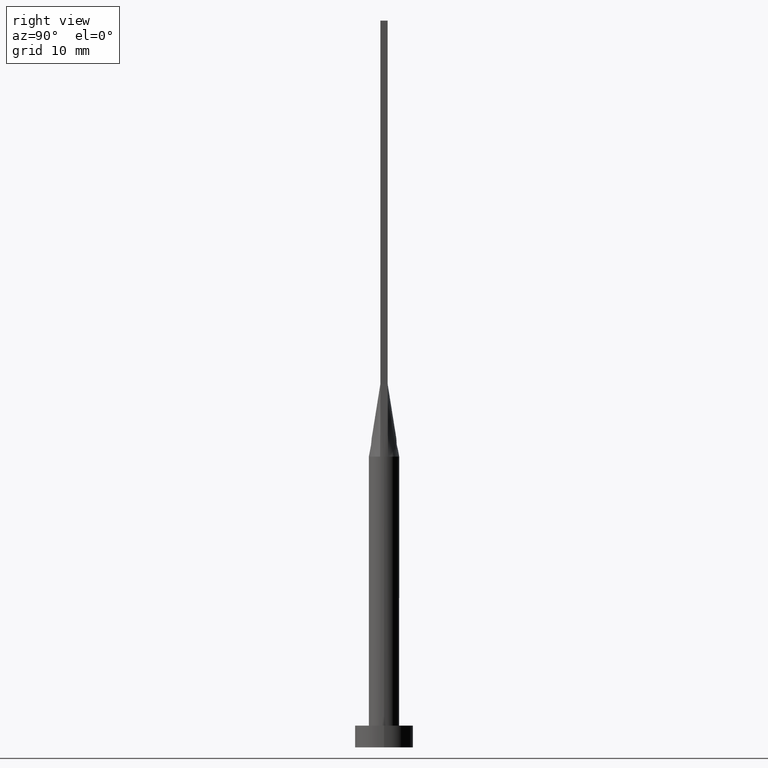
[diagram: clean part render]
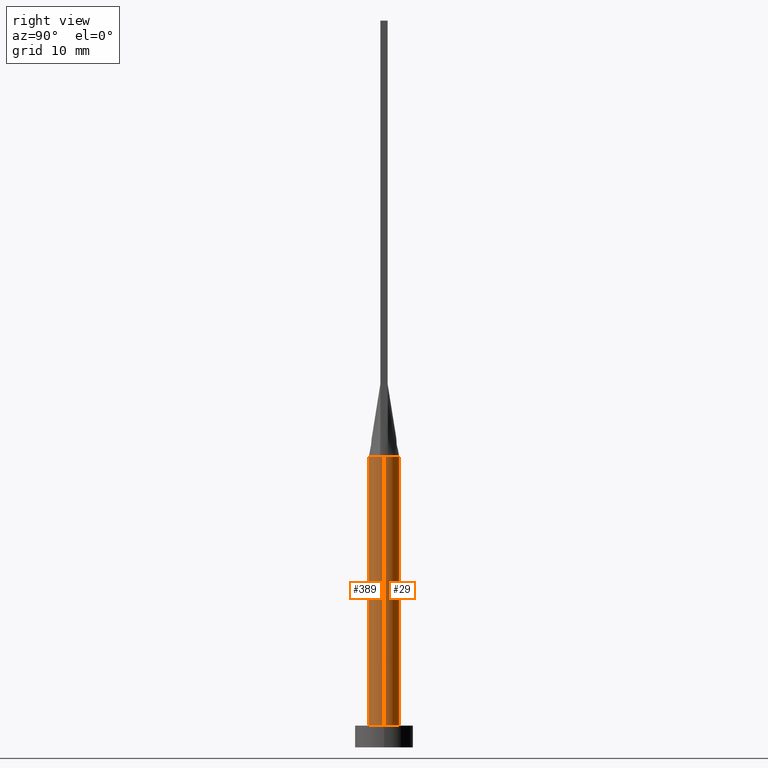
[diagram: same view with one multi-face feature highlighted, each face labeled with its STEP entity id]
A machine part, right view. The highlighted faces form ONE feature: a constant-radius fillet chain: 2 tangent blend faces with common blend radius 2.1 mm. The faces share edges in the B-rep.
Their STEP definitions:
[1] entity #389 (Cylinder):
#3 = VECTOR ( 'NONE', #355, 1000.000000000000000 ) ;
#7 = VERTEX_POINT ( 'NONE', #194 ) ;
#40 = VECTOR ( 'NONE', #156, 1000.000000000000000 ) ;
#46 = EDGE_CURVE ( 'NONE', #7, #149, #467, .T. ) ;
#47 = CIRCLE ( 'NONE', #217, 2.100000000000000089 ) ;
#50 = EDGE_CURVE ( 'NONE', #114, #7, #119, .T. ) ;
#52 = DIRECTION ( 'NONE',  ( 1.000000000000000000, 0.000000000000000000, 0.000000000000000000 ) ) ;
#64 = CARTESIAN_POINT ( 'NONE',  ( 2.100000000000000089, 2.571758278209441957E-16, 40.00000000000000000 ) ) ;
#66 = DIRECTION ( 'NONE',  ( -1.000000000000000000, 0.000000000000000000, 0.000000000000000000 ) ) ;
#86 = VERTEX_POINT ( 'NONE', #210 ) ;
#91 = LINE ( 'NONE', #394, #3 ) ;
#95 = ORIENTED_EDGE ( 'NONE', *, *, #50, .F. ) ;
#97 = CARTESIAN_POINT ( 'NONE',  ( 0.000000000000000000, 0.000000000000000000, 40.00000000000000000 ) ) ;
#114 = VERTEX_POINT ( 'NONE', #292 ) ;
#119 = CIRCLE ( 'NONE', #495, 2.100000000000000089 ) ;
#120 = AXIS2_PLACEMENT_3D ( 'NONE', #97, #375, #66 ) ;
#125 = ORIENTED_EDGE ( 'NONE', *, *, #327, .T. ) ;
#131 = EDGE_CURVE ( 'NONE', #553, #567, #91, .T. ) ;
#139 = AXIS2_PLACEMENT_3D ( 'NONE', #498, #279, #448 ) ;
#146 = CARTESIAN_POINT ( 'NONE',  ( 0.000000000000000000, 0.000000000000000000, 3.000000000000000000 ) ) ;
#149 = VERTEX_POINT ( 'NONE', #276 ) ;
#156 = DIRECTION ( 'NONE',  ( -0.000000000000000000, -0.000000000000000000, -1.000000000000000000 ) ) ;
#165 = CARTESIAN_POINT ( 'NONE',  ( -2.100000000000000089, -1.080980291041873360E-16, 40.00000000000000711 ) ) ;
#194 = CARTESIAN_POINT ( 'NONE',  ( 2.100000000000000089, 3.372022381799045987E-17, 40.00000000000000711 ) ) ;
#200 = FACE_OUTER_BOUND ( 'NONE', #329, .T. ) ;
#210 = CARTESIAN_POINT ( 'NONE',  ( -2.031004407172260162, -0.5344754071304557153, 40.00000000000000000 ) ) ;
#217 = AXIS2_PLACEMENT_3D ( 'NONE', #146, #371, #52 ) ;
#226 = DIRECTION ( 'NONE',  ( 1.000000000000000000, 0.000000000000000000, 0.000000000000000000 ) ) ;
#228 = EDGE_CURVE ( 'NONE', #553, #86, #401, .T. ) ;
#263 = DIRECTION ( 'NONE',  ( 0.000000000000000000, 0.000000000000000000, 1.000000000000000000 ) ) ;
#276 = CARTESIAN_POINT ( 'NONE',  ( 2.100000000000000089, 2.571758278209441957E-16, 3.000000000000000000 ) ) ;
#279 = DIRECTION ( 'NONE',  ( 0.000000000000000000, 0.000000000000000000, 1.000000000000000000 ) ) ;
#292 = CARTESIAN_POINT ( 'NONE',  ( 2.031027953490633031, -0.5344816358097418396, 40.00000000000000000 ) ) ;
#301 = EDGE_CURVE ( 'NONE', #86, #114, #409, .T. ) ;
#314 = ORIENTED_EDGE ( 'NONE', *, *, #131, .T. ) ;
#327 = EDGE_CURVE ( 'NONE', #567, #149, #47, .T. ) ;
#329 = EDGE_LOOP ( 'NONE', ( #384, #95, #487, #347, #314, #125 ) ) ;
#341 = DIRECTION ( 'NONE',  ( 1.000000000000000000, 4.440892098500626951E-15, 0.000000000000000000 ) ) ;
#347 = ORIENTED_EDGE ( 'NONE', *, *, #228, .F. ) ;
#355 = DIRECTION ( 'NONE',  ( -0.000000000000000000, -0.000000000000000000, -1.000000000000000000 ) ) ;
#357 = CARTESIAN_POINT ( 'NONE',  ( -2.100000000000000089, 0.000000000000000000, 3.000000000000000000 ) ) ;
#371 = DIRECTION ( 'NONE',  ( 0.000000000000000000, 0.000000000000000000, 1.000000000000000000 ) ) ;
#375 = DIRECTION ( 'NONE',  ( -0.000000000000000000, -0.000000000000000000, -1.000000000000000000 ) ) ;
#384 = ORIENTED_EDGE ( 'NONE', *, *, #46, .F. ) ;
#389 = ADVANCED_FACE ( 'NONE', ( #200 ), #452, .T. ) ;
#394 = CARTESIAN_POINT ( 'NONE',  ( -2.100000000000000089, 0.000000000000000000, 40.00000000000000000 ) ) ;
#401 = CIRCLE ( 'NONE', #571, 2.100000000000000089 ) ;
#409 = CIRCLE ( 'NONE', #139, 2.100000000000000089 ) ;
#434 = DIRECTION ( 'NONE',  ( 0.000000000000000000, 0.000000000000000000, 1.000000000000000000 ) ) ;
#448 = DIRECTION ( 'NONE',  ( 1.000000000000000000, 0.000000000000000000, 0.000000000000000000 ) ) ;
#452 = CYLINDRICAL_SURFACE ( 'NONE', #120, 2.100000000000000089 ) ;
#467 = LINE ( 'NONE', #64, #40 ) ;
#487 = ORIENTED_EDGE ( 'NONE', *, *, #301, .F. ) ;
#495 = AXIS2_PLACEMENT_3D ( 'NONE', #565, #263, #341 ) ;
#498 = CARTESIAN_POINT ( 'NONE',  ( 0.000000000000000000, 0.000000000000000000, 40.00000000000000000 ) ) ;
#553 = VERTEX_POINT ( 'NONE', #165 ) ;
#565 = CARTESIAN_POINT ( 'NONE',  ( 0.000000000000000000, 0.000000000000000000, 40.00000000000000000 ) ) ;
#567 = VERTEX_POINT ( 'NONE', #357 ) ;
#571 = AXIS2_PLACEMENT_3D ( 'NONE', #579, #434, #226 ) ;
#579 = CARTESIAN_POINT ( 'NONE',  ( 0.000000000000000000, 0.000000000000000000, 40.00000000000000000 ) ) ;
[2] entity #29 (Cylinder):
#3 = VECTOR ( 'NONE', #355, 1000.000000000000000 ) ;
#7 = VERTEX_POINT ( 'NONE', #194 ) ;
#19 = CARTESIAN_POINT ( 'NONE',  ( 1.920830191244603746, 0.8725264301372623876, 40.00000000000000000 ) ) ;
#21 = CARTESIAN_POINT ( 'NONE',  ( 0.2698109971861041290, 2.100000000000000089, 39.99999999999999289 ) ) ;
#29 = ADVANCED_FACE ( 'NONE', ( #266 ), #87, .T. ) ;
#34 = DIRECTION ( 'NONE',  ( 1.000000000000000000, 0.000000000000000000, 0.000000000000000000 ) ) ;
#39 = EDGE_LOOP ( 'NONE', ( #425, #262, #268, #69, #222, #122 ) ) ;
#40 = VECTOR ( 'NONE', #156, 1000.000000000000000 ) ;
#45 = CARTESIAN_POINT ( 'NONE',  ( -1.583604922800830428, 1.399063468093436402, 40.00000000000000000 ) ) ;
#46 = EDGE_CURVE ( 'NONE', #7, #149, #467, .T. ) ;
#64 = CARTESIAN_POINT ( 'NONE',  ( 2.100000000000000089, 2.571758278209441957E-16, 40.00000000000000000 ) ) ;
#67 = CARTESIAN_POINT ( 'NONE',  ( 1.235326090059014614, 1.714395692508636770, 40.00000000000002132 ) ) ;
#69 = ORIENTED_EDGE ( 'NONE', *, *, #131, .F. ) ;
#87 = CYLINDRICAL_SURFACE ( 'NONE', #246, 2.100000000000000089 ) ;
#91 = LINE ( 'NONE', #394, #3 ) ;
#96 = CARTESIAN_POINT ( 'NONE',  ( 2.030996101999494652, 0.5344731476277209126, 40.00000000000000000 ) ) ;
#99 = EDGE_CURVE ( 'NONE', #149, #567, #421, .T. ) ;
#121 = CIRCLE ( 'NONE', #525, 2.100000000000000089 ) ;
#122 = ORIENTED_EDGE ( 'NONE', *, *, #243, .F. ) ;
#127 = CARTESIAN_POINT ( 'NONE',  ( 1.987786580065029174, 0.6981017315960605929, 40.00000000000000000 ) ) ;
#131 = EDGE_CURVE ( 'NONE', #553, #567, #91, .T. ) ;
#138 = DIRECTION ( 'NONE',  ( -0.000000000000000000, -0.000000000000000000, -1.000000000000000000 ) ) ;
#149 = VERTEX_POINT ( 'NONE', #276 ) ;
#156 = DIRECTION ( 'NONE',  ( -0.000000000000000000, -0.000000000000000000, -1.000000000000000000 ) ) ;
#165 = CARTESIAN_POINT ( 'NONE',  ( -2.100000000000000089, -1.080980291041873360E-16, 40.00000000000000711 ) ) ;
#194 = CARTESIAN_POINT ( 'NONE',  ( 2.100000000000000089, 3.372022381799045987E-17, 40.00000000000000711 ) ) ;
#199 = DIRECTION ( 'NONE',  ( 0.000000000000000000, 0.000000000000000000, 1.000000000000000000 ) ) ;
#201 = CARTESIAN_POINT ( 'NONE',  ( 1.719043754744862040, 1.223020672007445464, 40.00000000000001421 ) ) ;
#205 = CARTESIAN_POINT ( 'NONE',  ( -0.2698109971861040179, 2.100000000000000089, 40.00000000000000711 ) ) ;
#222 = ORIENTED_EDGE ( 'NONE', *, *, #256, .F. ) ;
#243 = EDGE_CURVE ( 'NONE', #294, #509, #285, .T. ) ;
#246 = AXIS2_PLACEMENT_3D ( 'NONE', #573, #138, #429 ) ;
#255 = CARTESIAN_POINT ( 'NONE',  ( 1.021961681204346606, 1.852908961101259244, 40.00000000000000711 ) ) ;
#256 = EDGE_CURVE ( 'NONE', #509, #553, #309, .T. ) ;
#259 = AXIS2_PLACEMENT_3D ( 'NONE', #332, #284, #503 ) ;
#262 = ORIENTED_EDGE ( 'NONE', *, *, #46, .T. ) ;
#266 = FACE_OUTER_BOUND ( 'NONE', #39, .T. ) ;
#268 = ORIENTED_EDGE ( 'NONE', *, *, #99, .T. ) ;
#276 = CARTESIAN_POINT ( 'NONE',  ( 2.100000000000000089, 2.571758278209441957E-16, 3.000000000000000000 ) ) ;
#283 = CARTESIAN_POINT ( 'NONE',  ( 0.000000000000000000, 0.000000000000000000, 40.00000000000000000 ) ) ;
#284 = DIRECTION ( 'NONE',  ( 0.000000000000000000, 0.000000000000000000, 1.000000000000000000 ) ) ;
#285 = B_SPLINE_CURVE_WITH_KNOTS ( 'NONE', 3,
 ( #427, #127, #19, #201, #298, #67, #255, #418, #21, #205, #379, #562, #442, #45, #331, #407, #402, #362 ),
 .UNSPECIFIED., .F., .F.,
 ( 4, 2, 2, 2, 2, 2, 2, 2, 4 ),
 ( 0.000000000000000000, 0.1250000000000000278, 0.2500000000000000555, 0.3750000000000001110, 0.5000000000000000000, 0.6250000000000000000, 0.7500000000000000000, 0.8750000000000001110, 1.000000000000000000 ),
 .UNSPECIFIED. ) ;
#294 = VERTEX_POINT ( 'NONE', #96 ) ;
#298 = CARTESIAN_POINT ( 'NONE',  ( 1.583604922800830428, 1.399063468093436624, 40.00000000000000000 ) ) ;
#309 = CIRCLE ( 'NONE', #323, 2.100000000000000089 ) ;
#323 = AXIS2_PLACEMENT_3D ( 'NONE', #283, #199, #550 ) ;
#331 = CARTESIAN_POINT ( 'NONE',  ( -1.719043754744861596, 1.223020672007445242, 39.99999999999999289 ) ) ;
#332 = CARTESIAN_POINT ( 'NONE',  ( 0.000000000000000000, 0.000000000000000000, 3.000000000000000000 ) ) ;
#355 = DIRECTION ( 'NONE',  ( -0.000000000000000000, -0.000000000000000000, -1.000000000000000000 ) ) ;
#357 = CARTESIAN_POINT ( 'NONE',  ( -2.100000000000000089, 0.000000000000000000, 3.000000000000000000 ) ) ;
#362 = CARTESIAN_POINT ( 'NONE',  ( -2.031019593402089818, 0.5344793603115657321, 40.00000000000000000 ) ) ;
#378 = CARTESIAN_POINT ( 'NONE',  ( -2.031019593402089818, 0.5344793603115657321, 40.00000000000000000 ) ) ;
#379 = CARTESIAN_POINT ( 'NONE',  ( -0.5389299406762299016, 2.046272663899431965, 39.99999999999999289 ) ) ;
#394 = CARTESIAN_POINT ( 'NONE',  ( -2.100000000000000089, 0.000000000000000000, 40.00000000000000000 ) ) ;
#402 = CARTESIAN_POINT ( 'NONE',  ( -1.987786580065029174, 0.6981017315960602598, 39.99999999999999289 ) ) ;
#407 = CARTESIAN_POINT ( 'NONE',  ( -1.920830191244604412, 0.8725264301372623876, 40.00000000000000711 ) ) ;
#418 = CARTESIAN_POINT ( 'NONE',  ( 0.5389299406762297906, 2.046272663899431077, 40.00000000000000000 ) ) ;
#421 = CIRCLE ( 'NONE', #259, 2.100000000000000089 ) ;
#425 = ORIENTED_EDGE ( 'NONE', *, *, #476, .F. ) ;
#427 = CARTESIAN_POINT ( 'NONE',  ( 2.030996101999494652, 0.5344731476277209126, 40.00000000000000000 ) ) ;
#429 = DIRECTION ( 'NONE',  ( -1.000000000000000000, 0.000000000000000000, 0.000000000000000000 ) ) ;
#442 = CARTESIAN_POINT ( 'NONE',  ( -1.235326090059014836, 1.714395692508636326, 40.00000000000000000 ) ) ;
#467 = LINE ( 'NONE', #64, #40 ) ;
#472 = CARTESIAN_POINT ( 'NONE',  ( 0.000000000000000000, 0.000000000000000000, 40.00000000000000000 ) ) ;
#476 = EDGE_CURVE ( 'NONE', #7, #294, #121, .T. ) ;
#503 = DIRECTION ( 'NONE',  ( 1.000000000000000000, 0.000000000000000000, 0.000000000000000000 ) ) ;
#509 = VERTEX_POINT ( 'NONE', #378 ) ;
#516 = DIRECTION ( 'NONE',  ( 0.000000000000000000, 0.000000000000000000, 1.000000000000000000 ) ) ;
#525 = AXIS2_PLACEMENT_3D ( 'NONE', #472, #516, #34 ) ;
#550 = DIRECTION ( 'NONE',  ( 1.000000000000000000, 0.000000000000000000, 0.000000000000000000 ) ) ;
#553 = VERTEX_POINT ( 'NONE', #165 ) ;
#562 = CARTESIAN_POINT ( 'NONE',  ( -1.021961681204346384, 1.852908961101259022, 39.99999999999998579 ) ) ;
#567 = VERTEX_POINT ( 'NONE', #357 ) ;
#573 = CARTESIAN_POINT ( 'NONE',  ( 0.000000000000000000, 0.000000000000000000, 40.00000000000000000 ) ) ;